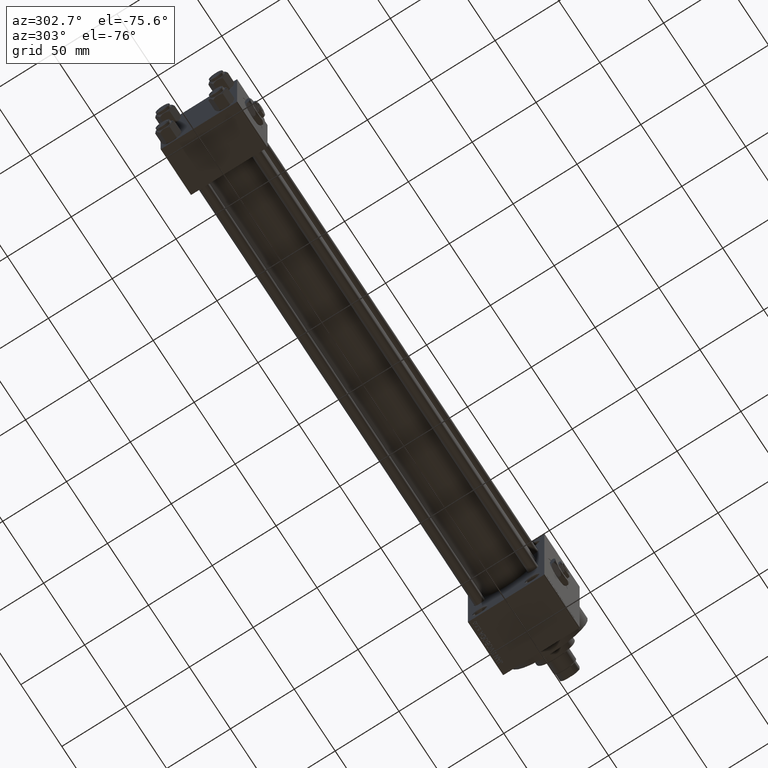
[diagram: clean part render]
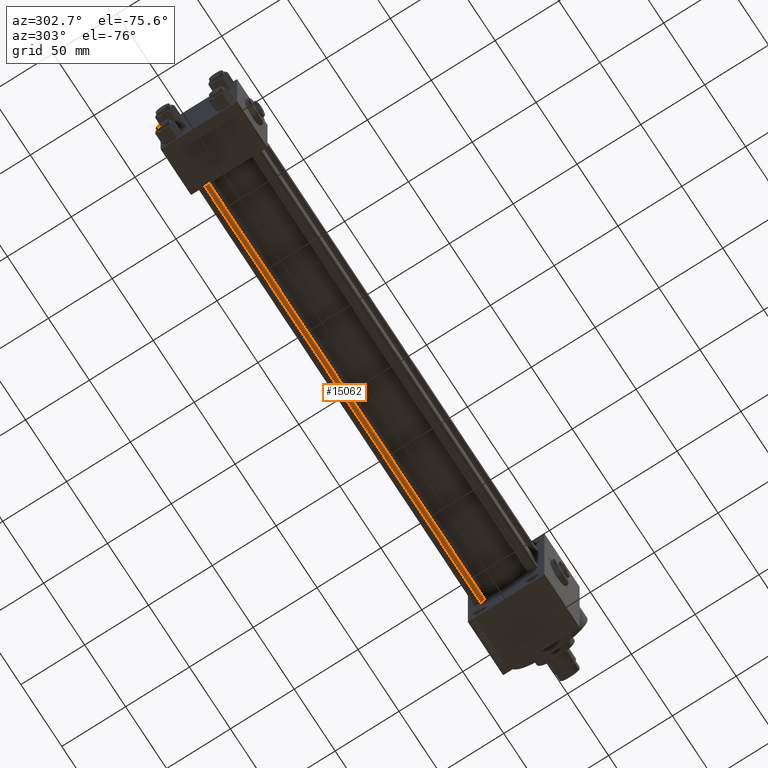
[diagram: same view with one face highlighted and labeled with its STEP entity id]
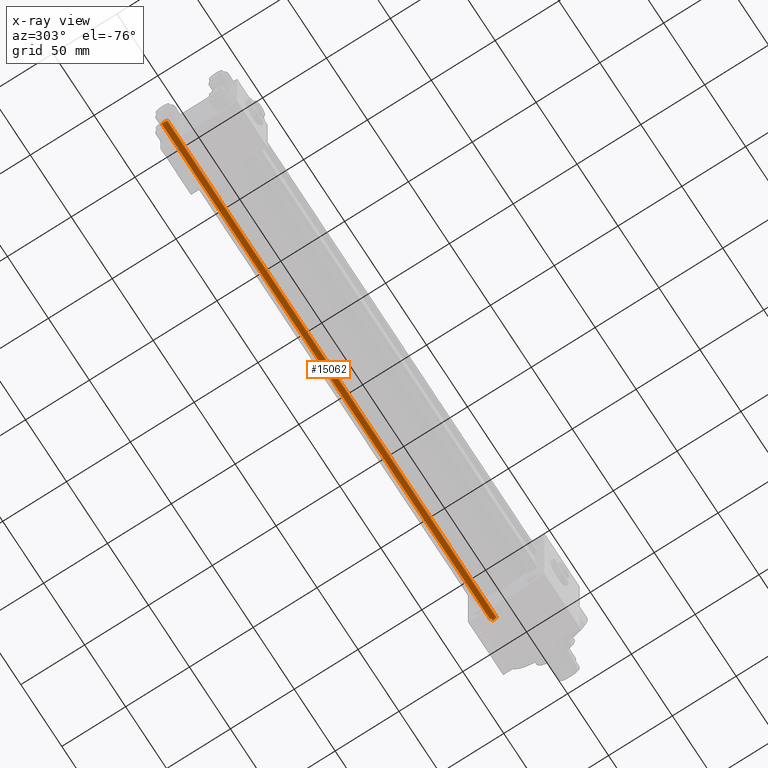
[diagram: x-ray of the same camera — body ghosted, the highlighted face saturated]
A machine part, auxiliary view. The second image highlights one B-rep face of the part: STEP entity #15062.
The next image is the same camera in x-ray: the body ghosted, the highlighted face saturated — about 0% of this face is hidden behind the body in this view.
In plain terms, the highlighted cylindrical surface (edge-blend (fillet) strip) has radius 4 mm, axis along (1, -0, 0).
Its self-contained STEP definition (entity closure, byte-faithful):
#1514 = CIRCLE ( 'NONE', #47621, 4.000000000000000000 ) ;
#1726 = LINE ( 'NONE', #47784, #45452 ) ;
#2107 = CARTESIAN_POINT ( 'NONE',  ( 0.000000000000000000, 0.000000000000000000, 0.5000000000000004441 ) ) ;
#2847 = CARTESIAN_POINT ( 'NONE',  ( 0.000000000000000000, 0.000000000000000000, 401.5000000000000568 ) ) ;
#3749 = CYLINDRICAL_SURFACE ( 'NONE', #16575, 4.000000000000000000 ) ;
#3869 = ORIENTED_EDGE ( 'NONE', *, *, #15992, .T. ) ;
#4368 = EDGE_CURVE ( 'NONE', #45276, #15962, #1726, .T. ) ;
#6005 = CARTESIAN_POINT ( 'NONE',  ( 4.000000000000000000, 4.898587196589412829E-16, 401.5000000000000568 ) ) ;
#7113 = ORIENTED_EDGE ( 'NONE', *, *, #29803, .T. ) ;
#7303 = ORIENTED_EDGE ( 'NONE', *, *, #4368, .F. ) ;
#9064 = CARTESIAN_POINT ( 'NONE',  ( -4.000000000000000000, 0.000000000000000000, 0.5000000000000004441 ) ) ;
#12980 = EDGE_LOOP ( 'NONE', ( #7303, #3869, #7113, #26716 ) ) ;
#14365 = CARTESIAN_POINT ( 'NONE',  ( -4.000000000000000000, 0.000000000000000000, 401.5000000000000568 ) ) ;
#15062 = ADVANCED_FACE ( 'NONE', ( #38106 ), #3749, .T. ) ;
#15962 = VERTEX_POINT ( 'NONE', #28983 ) ;
#15992 = EDGE_CURVE ( 'NONE', #45276, #25203, #1514, .T. ) ;
#16034 = EDGE_CURVE ( 'NONE', #41693, #15962, #23745, .T. ) ;
#16575 = AXIS2_PLACEMENT_3D ( 'NONE', #27407, #42356, #18933 ) ;
#18933 = DIRECTION ( 'NONE',  ( -1.000000000000000000, 0.000000000000000000, 0.000000000000000000 ) ) ;
#22311 = CARTESIAN_POINT ( 'NONE',  ( -4.000000000000000000, 0.000000000000000000, 402.0000000000000000 ) ) ;
#23745 = CIRCLE ( 'NONE', #34099, 4.000000000000000000 ) ;
#25203 = VERTEX_POINT ( 'NONE', #14365 ) ;
#26716 = ORIENTED_EDGE ( 'NONE', *, *, #16034, .T. ) ;
#27407 = CARTESIAN_POINT ( 'NONE',  ( 0.000000000000000000, 0.000000000000000000, 402.0000000000000000 ) ) ;
#28983 = CARTESIAN_POINT ( 'NONE',  ( 4.000000000000000000, 4.898587196589412829E-16, 0.5000000000000004441 ) ) ;
#29732 = DIRECTION ( 'NONE',  ( 0.000000000000000000, 0.000000000000000000, -1.000000000000000000 ) ) ;
#29803 = EDGE_CURVE ( 'NONE', #25203, #41693, #30019, .T. ) ;
#30019 = LINE ( 'NONE', #22311, #44814 ) ;
#32958 = DIRECTION ( 'NONE',  ( -0.000000000000000000, -0.000000000000000000, 1.000000000000000000 ) ) ;
#33198 = DIRECTION ( 'NONE',  ( 1.000000000000000000, 0.000000000000000000, 0.000000000000000000 ) ) ;
#34099 = AXIS2_PLACEMENT_3D ( 'NONE', #2107, #32958, #48187 ) ;
#38106 = FACE_OUTER_BOUND ( 'NONE', #12980, .T. ) ;
#41693 = VERTEX_POINT ( 'NONE', #9064 ) ;
#41736 = DIRECTION ( 'NONE',  ( -0.000000000000000000, -0.000000000000000000, -1.000000000000000000 ) ) ;
#42356 = DIRECTION ( 'NONE',  ( -0.000000000000000000, -0.000000000000000000, -1.000000000000000000 ) ) ;
#44814 = VECTOR ( 'NONE', #41736, 1000.000000000000000 ) ;
#45276 = VERTEX_POINT ( 'NONE', #6005 ) ;
#45452 = VECTOR ( 'NONE', #48041, 1000.000000000000000 ) ;
#47621 = AXIS2_PLACEMENT_3D ( 'NONE', #2847, #29732, #33198 ) ;
#47784 = CARTESIAN_POINT ( 'NONE',  ( 4.000000000000000000, 4.898587196589412829E-16, 402.0000000000000000 ) ) ;
#48041 = DIRECTION ( 'NONE',  ( -0.000000000000000000, -0.000000000000000000, -1.000000000000000000 ) ) ;
#48187 = DIRECTION ( 'NONE',  ( 1.000000000000000000, 0.000000000000000000, 0.000000000000000000 ) ) ;